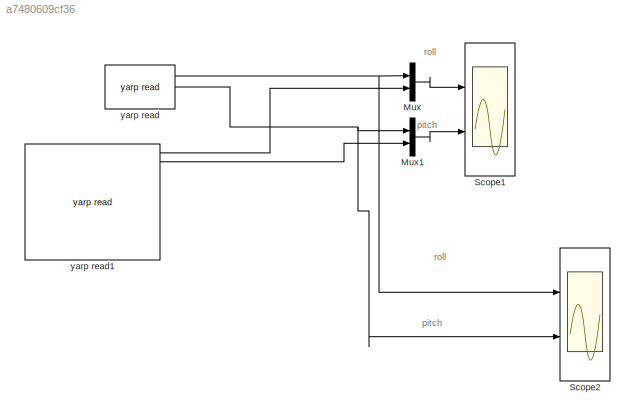
MODEL slx_a7480609cf36
KIND model
CONFIG InitFcn = Ts=0.010;\nROBOT_DOF=23;\nrobotName='icubGazeboSim';\nlocalName='simulink';
BLOCK [Mux] Mux
  DisplayOption = bar
  Inputs = 2
  Ports = [2, 1]
BLOCK [Mux] Mux1
  DisplayOption = bar
  Inputs = 2
  Ports = [2, 1]
BLOCK [Scope] Scope1
  Floating = off
  LimitDataPoints = off
  NumInputPorts = 2
  Ports = [2]
  SaveName = ScopeData1
  ShowLegends = off
  TimeRange = 50000
  YMax = 40~60
  YMin = -50~-60
BLOCK [Scope] Scope2
  Floating = off
  LimitDataPoints = off
  NumInputPorts = 2
  Ports = [2]
  SaveName = ScopeData2
  ShowLegends = off
  TimeRange = 50000
  YMax = 1~1
  YMin = 0~0
BLOCK [Reference] yarp read  REF=WBCLibrary/Utilities/yarp read
  Ports = [0, 3]
  SourceBlock = WBCLibrary/Utilities/yarp read
  SourceType = yarp read
  autoconnect = on
  blocking = off
  from = ['/' 'quaternionEKFModule' '/filteredOrientationEuler:o']
  num = 3
  timestamp = off
  to = '...'
BLOCK [Reference] yarp read1  REF=WBCLibrary/Utilities/yarp read
  Ports = [0, 12]
  SourceBlock = WBCLibrary/Utilities/yarp read
  SourceType = yarp read
  autoconnect = on
  blocking = off
  from = ['/icub/inertial']
  num = 12
  timestamp = off
  to = '...'
ANNOTATION (root): pitch
ANNOTATION (root): roll
LINE Mux1:1 -> Scope1:2
LINE Mux:1 -> Scope1:1
LINE yarp read1:1 -> Mux:2
LINE yarp read1:2 -> Mux1:2
NET yarp read:1 -> Mux:1, Scope2:1
NET yarp read:2 -> Mux1:1, Scope2:2
note: NET lines group one-source signal fan-out (src -> all destinations, sorted); 1:1 wires keep LINE
